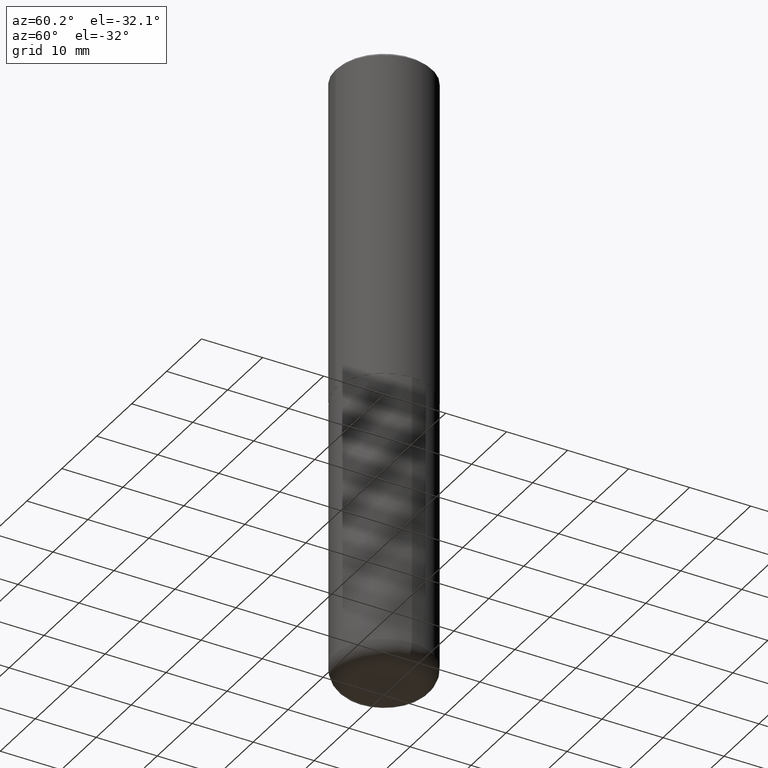
[diagram: clean part render]
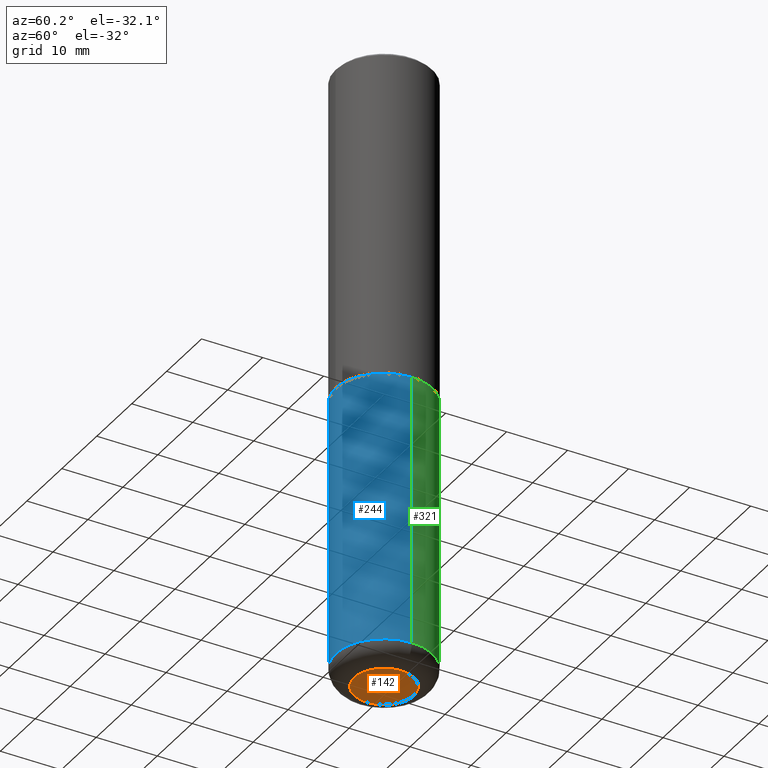
[diagram: same view with three faces highlighted in distinct colors, each labeled with its STEP entity id]
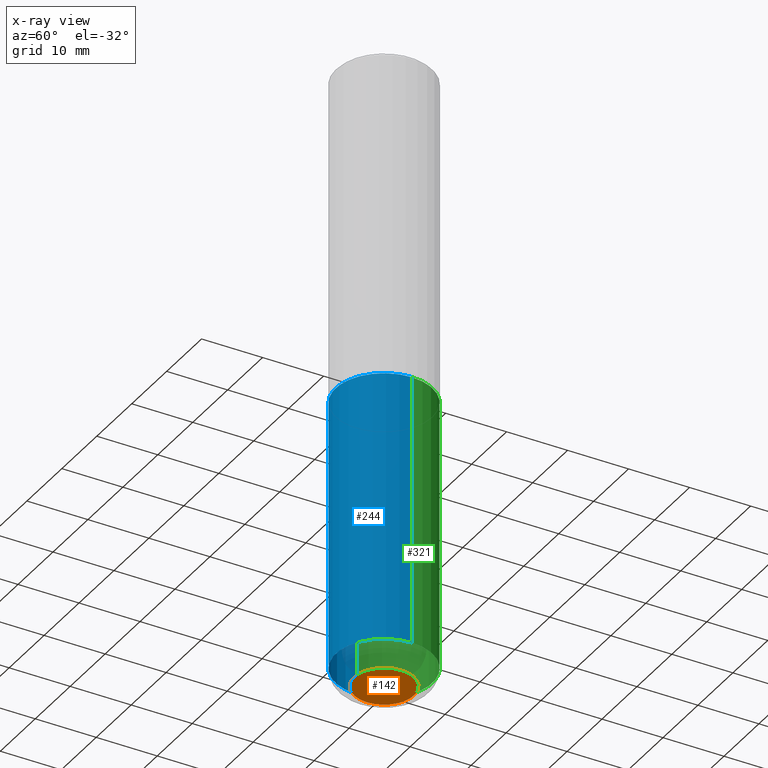
[diagram: x-ray of the same camera — body ghosted, the three highlighted faces saturated]
A machine part, auxiliary view with three faces highlighted in distinct colors.
The next image is the same camera in x-ray (body ghosted, the three faces saturated) — at least one of them is partly hidden behind the body in this view.
Their STEP definitions:

[orange] entity #142 — the highlighted planar face has unit normal (0, -0, -1).
#10 = AXIS2_PLACEMENT_3D ( 'NONE', #249, #158, #126 ) ;
#84 = EDGE_CURVE ( 'NONE', #408, #245, #324, .T. ) ;
#92 = PLANE ( 'NONE',  #347 ) ;
#126 = DIRECTION ( 'NONE',  ( 1.000000000000000000, -6.982962677686269077E-15, 0.000000000000000000 ) ) ;
#130 = EDGE_CURVE ( 'NONE', #245, #408, #411, .T. ) ;
#135 = AXIS2_PLACEMENT_3D ( 'NONE', #283, #259, #188 ) ;
#142 = ADVANCED_FACE ( 'NONE', ( #251 ), #92, .T. ) ;
#158 = DIRECTION ( 'NONE',  ( -2.445468806185136597E-29, 3.491481338843145583E-15, 1.000000000000000000 ) ) ;
#188 = DIRECTION ( 'NONE',  ( 1.000000000000000000, -6.982962677686269077E-15, 0.000000000000000000 ) ) ;
#204 = EDGE_LOOP ( 'NONE', ( #221, #219 ) ) ;
#217 = DIRECTION ( 'NONE',  ( -1.000000000000000000, 6.982962677686265922E-15, -4.876176775795935793E-29 ) ) ;
#219 = ORIENTED_EDGE ( 'NONE', *, *, #84, .F. ) ;
#221 = ORIENTED_EDGE ( 'NONE', *, *, #130, .F. ) ;
#230 = CARTESIAN_POINT ( 'NONE',  ( 0.1925000000000000044, -1.531014567082719057E-14, -4.000000000000000888 ) ) ;
#245 = VERTEX_POINT ( 'NONE', #230 ) ;
#249 = CARTESIAN_POINT ( 'NONE',  ( 9.781875224740547508E-29, -1.396592535537258391E-14, -4.000000000000000888 ) ) ;
#251 = FACE_OUTER_BOUND ( 'NONE', #204, .T. ) ;
#259 = DIRECTION ( 'NONE',  ( -2.445468806185136597E-29, 3.491481338843145583E-15, 1.000000000000000000 ) ) ;
#283 = CARTESIAN_POINT ( 'NONE',  ( 9.781875224740547508E-29, -1.396592535537258391E-14, -4.000000000000000888 ) ) ;
#306 = CARTESIAN_POINT ( 'NONE',  ( 1.854023762560946993E-29, -2.531905987449679755E-14, -4.000000000000000000 ) ) ;
#324 = CIRCLE ( 'NONE', #10, 0.1925000000000000044 ) ;
#330 = CARTESIAN_POINT ( 'NONE',  ( -0.1925000000000000044, -1.196231606724774300E-14, -4.000000000000000888 ) ) ;
#347 = AXIS2_PLACEMENT_3D ( 'NONE', #306, #384, #217 ) ;
#384 = DIRECTION ( 'NONE',  ( 2.438088387897960049E-29, -3.491481338843145188E-15, -1.000000000000000000 ) ) ;
#408 = VERTEX_POINT ( 'NONE', #330 ) ;
#411 = CIRCLE ( 'NONE', #135, 0.1925000000000000044 ) ;

[blue] entity #244 — the highlighted cylindrical surface (partial cylindrical patch) has radius 7.9375 mm, axis along (-0, 0, 1).
#4 = CYLINDRICAL_SURFACE ( 'NONE', #195, 0.3125000000000000000 ) ;
#21 = ORIENTED_EDGE ( 'NONE', *, *, #167, .F. ) ;
#29 = VECTOR ( 'NONE', #149, 39.37007874015748143 ) ;
#34 = ORIENTED_EDGE ( 'NONE', *, *, #260, .F. ) ;
#73 = CARTESIAN_POINT ( 'NONE',  ( 0.000000000000000000, 0.000000000000000000, 0.000000000000000000 ) ) ;
#78 = CARTESIAN_POINT ( 'NONE',  ( 9.488418967998330085E-29, -1.354694759471140570E-14, -3.880000000000000338 ) ) ;
#83 = DIRECTION ( 'NONE',  ( 1.000000000000000000, -6.982962677686265133E-15, 0.000000000000000000 ) ) ;
#108 = CIRCLE ( 'NONE', #292, 0.3125000000000000000 ) ;
#114 = VERTEX_POINT ( 'NONE', #281 ) ;
#127 = EDGE_LOOP ( 'NONE', ( #21, #250, #385, #34 ) ) ;
#129 = DIRECTION ( 'NONE',  ( -2.445468806185136877E-29, 3.491481338843145188E-15, 1.000000000000000000 ) ) ;
#143 = DIRECTION ( 'NONE',  ( -2.445468806185136597E-29, 3.491481338843145583E-15, 1.000000000000000000 ) ) ;
#149 = DIRECTION ( 'NONE',  ( -2.445468806185136877E-29, 3.491481338843145188E-15, 1.000000000000000000 ) ) ;
#150 = VERTEX_POINT ( 'NONE', #335 ) ;
#167 = EDGE_CURVE ( 'NONE', #360, #114, #414, .T. ) ;
#172 = DIRECTION ( 'NONE',  ( -2.445468806185136597E-29, 3.491481338843145583E-15, 1.000000000000000000 ) ) ;
#175 = DIRECTION ( 'NONE',  ( -2.445468806185136597E-29, 3.491481338843145583E-15, 1.000000000000000000 ) ) ;
#195 = AXIS2_PLACEMENT_3D ( 'NONE', #73, #172, #290 ) ;
#208 = DIRECTION ( 'NONE',  ( 1.000000000000000000, -6.982962677686269077E-15, 0.000000000000000000 ) ) ;
#216 = AXIS2_PLACEMENT_3D ( 'NONE', #78, #175, #208 ) ;
#228 = FACE_OUTER_BOUND ( 'NONE', #127, .T. ) ;
#239 = VERTEX_POINT ( 'NONE', #390 ) ;
#244 = ADVANCED_FACE ( 'NONE', ( #228 ), #4, .T. ) ;
#250 = ORIENTED_EDGE ( 'NONE', *, *, #296, .T. ) ;
#260 = EDGE_CURVE ( 'NONE', #114, #239, #108, .T. ) ;
#281 = CARTESIAN_POINT ( 'NONE',  ( -0.3125000000000000000, -8.262726670626231579E-15, -2.124999999999999556 ) ) ;
#290 = DIRECTION ( 'NONE',  ( 1.000000000000000000, -6.982962677686266711E-15, 4.876176775795936353E-29 ) ) ;
#291 = VECTOR ( 'NONE', #129, 39.37007874015748143 ) ;
#292 = AXIS2_PLACEMENT_3D ( 'NONE', #351, #143, #83 ) ;
#296 = EDGE_CURVE ( 'NONE', #360, #150, #362, .T. ) ;
#297 = CARTESIAN_POINT ( 'NONE',  ( 0.3125000000000000000, -2.182175836776958347E-15, 1.523805242436230075E-29 ) ) ;
#312 = EDGE_CURVE ( 'NONE', #150, #239, #328, .T. ) ;
#322 = CARTESIAN_POINT ( 'NONE',  ( -0.3125000000000000555, -1.132650154546109262E-14, -3.880000000000000338 ) ) ;
#328 = LINE ( 'NONE', #297, #29 ) ;
#335 = CARTESIAN_POINT ( 'NONE',  ( 0.3125000000000000555, -1.572912343148836404E-14, -3.880000000000000338 ) ) ;
#341 = CARTESIAN_POINT ( 'NONE',  ( -0.3125000000000000000, 2.220446049250313081E-15, -1.537167215704658232E-29 ) ) ;
#351 = CARTESIAN_POINT ( 'NONE',  ( 5.196621213143414147E-29, -7.419397845041682046E-15, -2.124999999999999556 ) ) ;
#360 = VERTEX_POINT ( 'NONE', #322 ) ;
#362 = CIRCLE ( 'NONE', #216, 0.3125000000000000000 ) ;
#385 = ORIENTED_EDGE ( 'NONE', *, *, #312, .T. ) ;
#390 = CARTESIAN_POINT ( 'NONE',  ( 0.3125000000000000000, -9.601573681818640393E-15, -2.124999999999999556 ) ) ;
#414 = LINE ( 'NONE', #341, #291 ) ;

[green] entity #321 — the highlighted cylindrical surface (partial cylindrical patch) has radius 7.9375 mm, axis along (-0, 0, 1).
#29 = VECTOR ( 'NONE', #149, 39.37007874015748143 ) ;
#30 = ORIENTED_EDGE ( 'NONE', *, *, #231, .F. ) ;
#39 = DIRECTION ( 'NONE',  ( -2.445468806185136597E-29, 3.491481338843145583E-15, 1.000000000000000000 ) ) ;
#40 = CARTESIAN_POINT ( 'NONE',  ( 5.196621213143414147E-29, -7.419397845041682046E-15, -2.124999999999999556 ) ) ;
#50 = DIRECTION ( 'NONE',  ( 1.000000000000000000, -6.982962677686266711E-15, 4.876176775795936353E-29 ) ) ;
#72 = ORIENTED_EDGE ( 'NONE', *, *, #394, .T. ) ;
#81 = ORIENTED_EDGE ( 'NONE', *, *, #312, .F. ) ;
#110 = CIRCLE ( 'NONE', #391, 0.3125000000000000000 ) ;
#114 = VERTEX_POINT ( 'NONE', #281 ) ;
#120 = DIRECTION ( 'NONE',  ( -2.445468806185136597E-29, 3.491481338843145583E-15, 1.000000000000000000 ) ) ;
#129 = DIRECTION ( 'NONE',  ( -2.445468806185136877E-29, 3.491481338843145188E-15, 1.000000000000000000 ) ) ;
#149 = DIRECTION ( 'NONE',  ( -2.445468806185136877E-29, 3.491481338843145188E-15, 1.000000000000000000 ) ) ;
#150 = VERTEX_POINT ( 'NONE', #335 ) ;
#167 = EDGE_CURVE ( 'NONE', #360, #114, #414, .T. ) ;
#171 = DIRECTION ( 'NONE',  ( 1.000000000000000000, -6.982962677686265133E-15, 0.000000000000000000 ) ) ;
#181 = EDGE_LOOP ( 'NONE', ( #72, #254, #30, #81 ) ) ;
#203 = FACE_OUTER_BOUND ( 'NONE', #181, .T. ) ;
#207 = CIRCLE ( 'NONE', #299, 0.3125000000000000000 ) ;
#231 = EDGE_CURVE ( 'NONE', #239, #114, #207, .T. ) ;
#238 = CARTESIAN_POINT ( 'NONE',  ( 9.488418967998330085E-29, -1.354694759471140570E-14, -3.880000000000000338 ) ) ;
#239 = VERTEX_POINT ( 'NONE', #390 ) ;
#254 = ORIENTED_EDGE ( 'NONE', *, *, #167, .T. ) ;
#268 = DIRECTION ( 'NONE',  ( -2.445468806185136597E-29, 3.491481338843145583E-15, 1.000000000000000000 ) ) ;
#281 = CARTESIAN_POINT ( 'NONE',  ( -0.3125000000000000000, -8.262726670626231579E-15, -2.124999999999999556 ) ) ;
#291 = VECTOR ( 'NONE', #129, 39.37007874015748143 ) ;
#297 = CARTESIAN_POINT ( 'NONE',  ( 0.3125000000000000000, -2.182175836776958347E-15, 1.523805242436230075E-29 ) ) ;
#299 = AXIS2_PLACEMENT_3D ( 'NONE', #40, #39, #171 ) ;
#308 = AXIS2_PLACEMENT_3D ( 'NONE', #406, #120, #50 ) ;
#312 = EDGE_CURVE ( 'NONE', #150, #239, #328, .T. ) ;
#321 = ADVANCED_FACE ( 'NONE', ( #203 ), #403, .T. ) ;
#322 = CARTESIAN_POINT ( 'NONE',  ( -0.3125000000000000555, -1.132650154546109262E-14, -3.880000000000000338 ) ) ;
#328 = LINE ( 'NONE', #297, #29 ) ;
#335 = CARTESIAN_POINT ( 'NONE',  ( 0.3125000000000000555, -1.572912343148836404E-14, -3.880000000000000338 ) ) ;
#341 = CARTESIAN_POINT ( 'NONE',  ( -0.3125000000000000000, 2.220446049250313081E-15, -1.537167215704658232E-29 ) ) ;
#360 = VERTEX_POINT ( 'NONE', #322 ) ;
#390 = CARTESIAN_POINT ( 'NONE',  ( 0.3125000000000000000, -9.601573681818640393E-15, -2.124999999999999556 ) ) ;
#391 = AXIS2_PLACEMENT_3D ( 'NONE', #238, #268, #399 ) ;
#394 = EDGE_CURVE ( 'NONE', #150, #360, #110, .T. ) ;
#399 = DIRECTION ( 'NONE',  ( 1.000000000000000000, -6.982962677686269077E-15, 0.000000000000000000 ) ) ;
#403 = CYLINDRICAL_SURFACE ( 'NONE', #308, 0.3125000000000000000 ) ;
#406 = CARTESIAN_POINT ( 'NONE',  ( 0.000000000000000000, 0.000000000000000000, 0.000000000000000000 ) ) ;
#414 = LINE ( 'NONE', #341, #291 ) ;